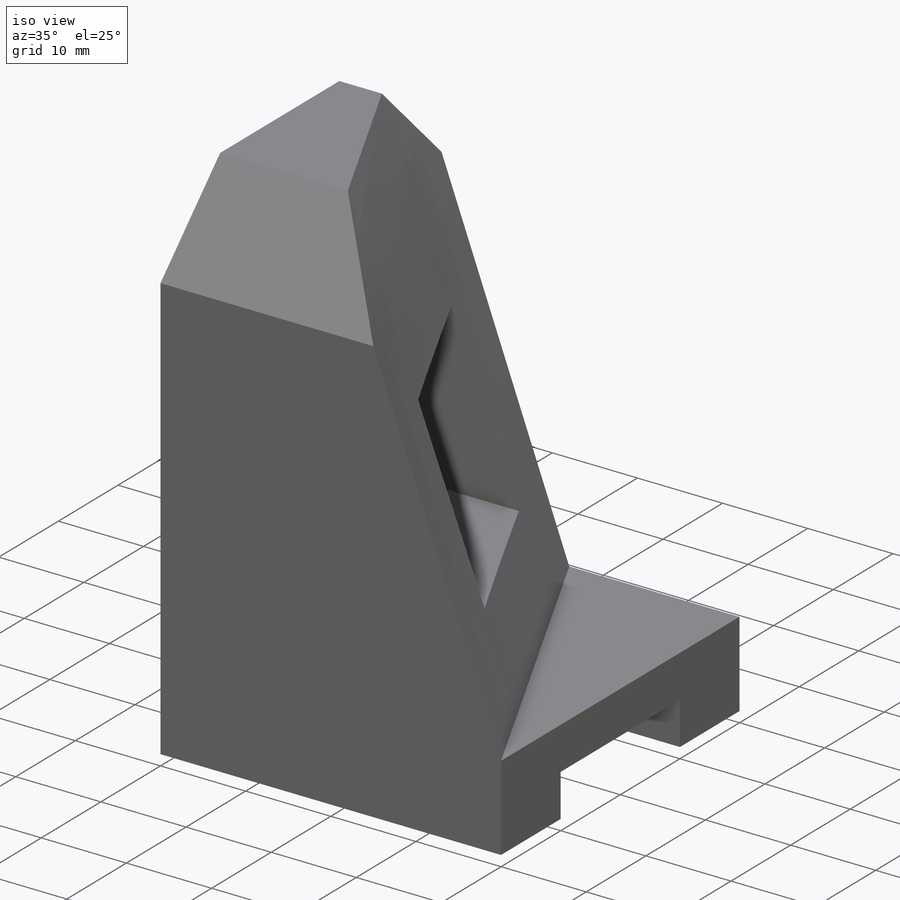
[diagram: iso view]
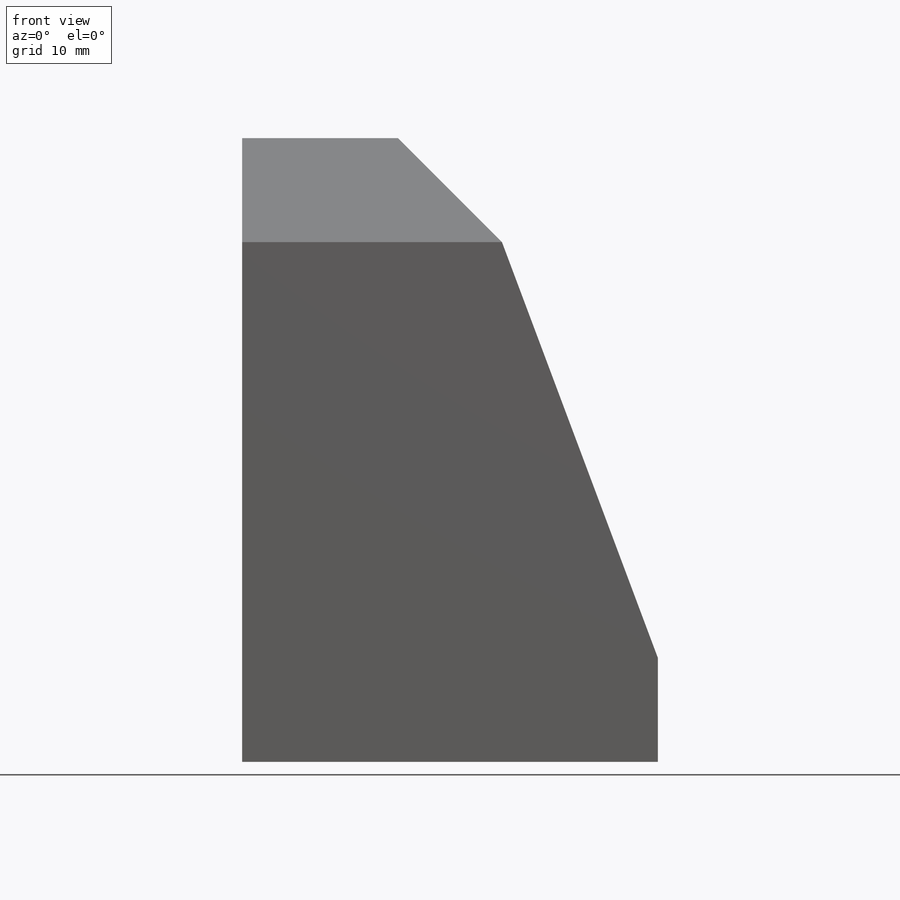
[diagram: front view]
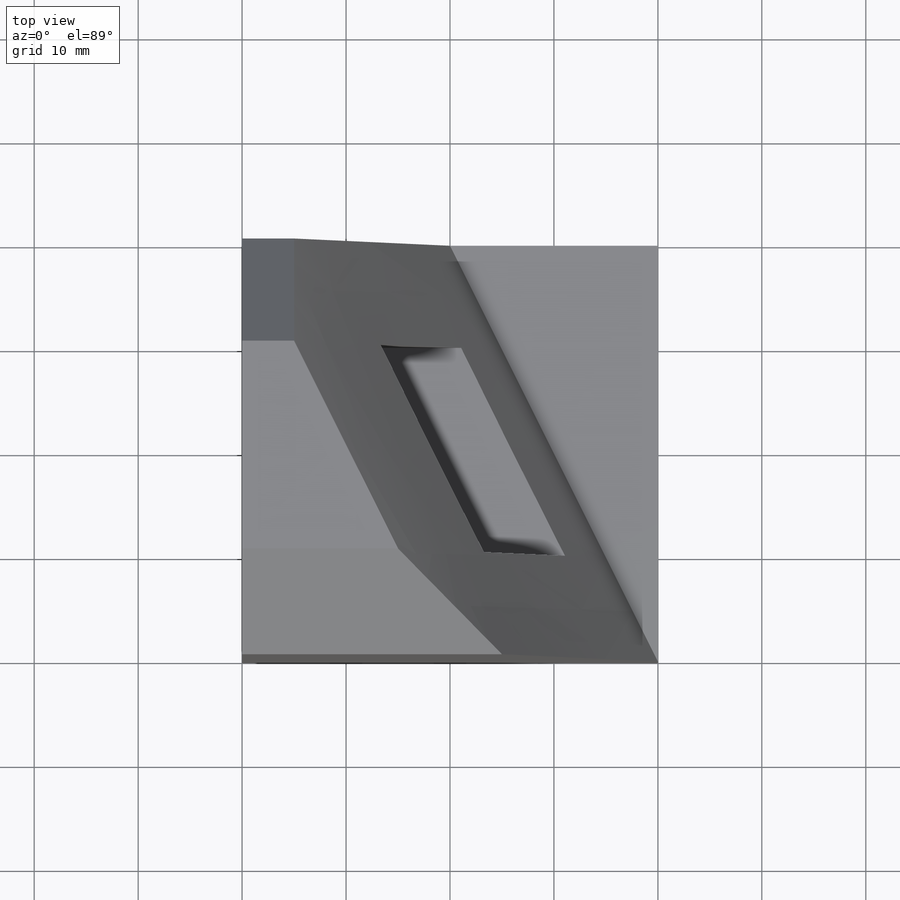
[diagram: top view]
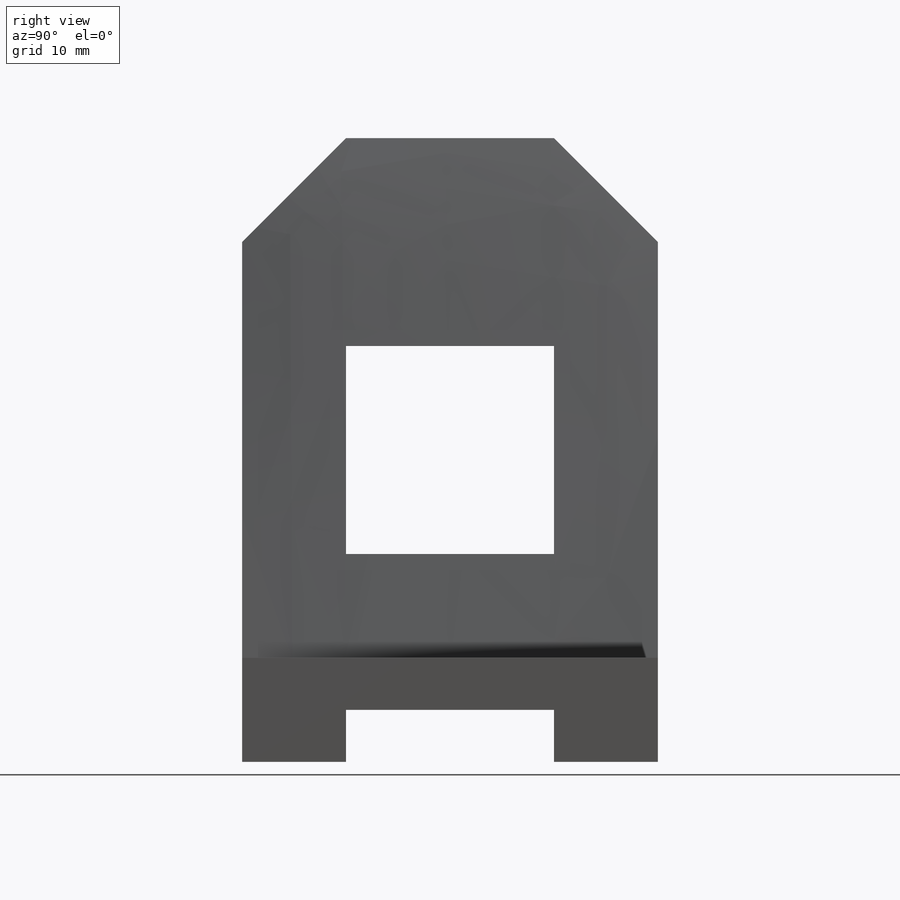
[diagram: right view]
SOLIDWORKS PART (.sldprt)
format: sldprt  version: not decoded by parser v0  size: 231,936 bytes
history: native  units: mm
features: sketch x7, material x1, extrude x1, cut_extrude x1 (+13 scaffold rows collapsed)
feature tree (23):
  scaffold x13  (default folders/planes/origin — collapsed)
  material  "Material <not specified>"
  sketch  "Sketch2"  dims[c1.D1=10.0mm c1.D2=10.0mm c1.D3=50.0mm c1.D4=50.0mm c1.D5=20.0mm c1.D6=5.0mm c1.D7=20.0mm c1.D8=10.0mm c1.D9=200.0mm c1.D10=20.0mm c1.D11=150.0mm c2.D9=20.0mm c2.D10=15.0mm]
  extrude  "Boss-Extrude1"  Depth=40mm
  sketch  "Sketch3"  dims[D1=5.0mm D2=10.0mm D3=20.0mm]
  sketch  "Sketch4"  dims[D1=5.0mm]
  sketch  "Sketch5"  dims[D1=15.0mm]
  sketch  "Sketch7"  dims[D1=10.0mm]
  sketch  "3DSketch1"  dims[D1=25.0mm]
  sketch  "Sketch8"  dims[D1=~5.000087mm]
  cut_extrude  "Cut-Extrude12"  Depth=40mm
decode coverage: 9 of 9 modeling features carry decoded parameters
note: ~ marks probable driven/reference dimensions
note: suppression state not decoded; provenance and decode notes live in map.json
